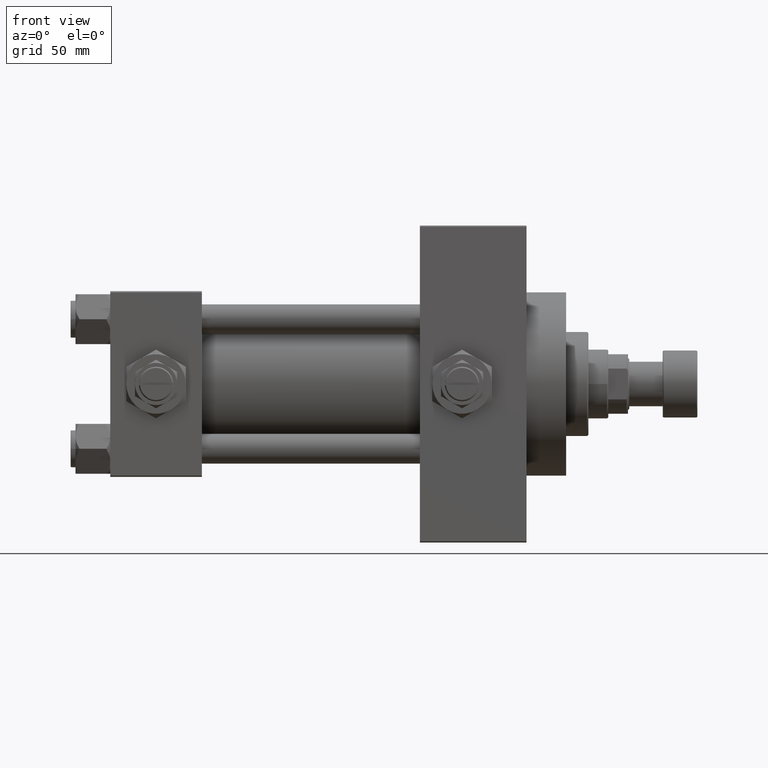
[diagram: clean part render]
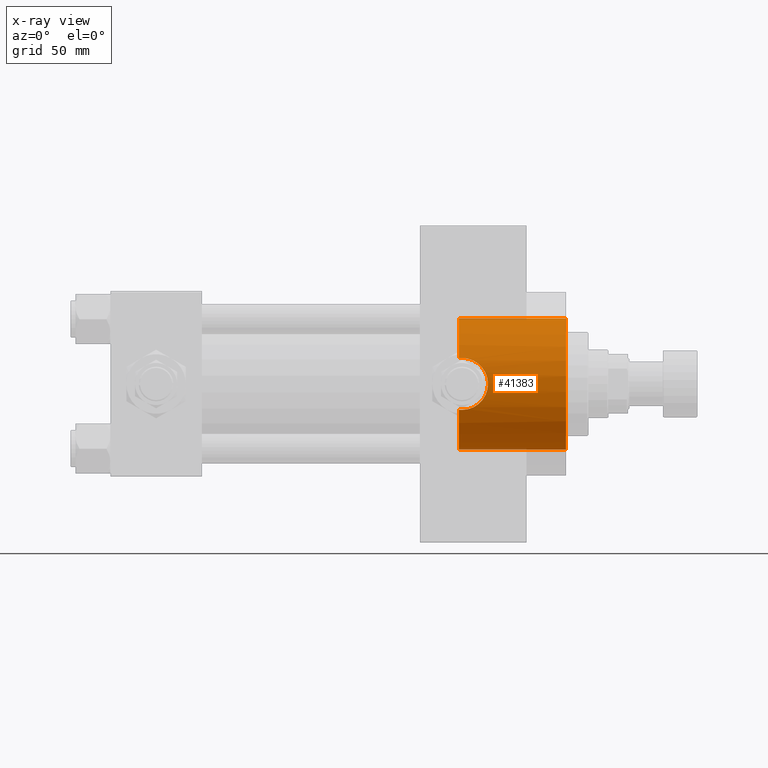
[diagram: x-ray — body ghosted, one internal face saturated and labeled with its STEP entity id]
A machine part, front view, then the same camera in x-ray: the body is ghosted and one INTERNAL B-rep face — a face not visible from any outside direction — is saturated and labeled: STEP entity #41383.
In plain terms, the highlighted cylindrical surface (partial cylindrical patch) has radius 26.5 mm, axis along (1, 0, 0).
Its self-contained STEP definition (entity closure, byte-faithful):
#91 = DIRECTION ( 'NONE',  ( 1.000000000000000000, -0.000000000000000000, -0.000000000000000000 ) ) ;
#261 = EDGE_CURVE ( 'NONE', #30128, #46698, #22374, .T. ) ;
#367 = CARTESIAN_POINT ( 'NONE',  ( 140.7400000000000091, 0.000000000000000000, 0.000000000000000000 ) ) ;
#427 = DIRECTION ( 'NONE',  ( 1.000000000000000000, -0.000000000000000000, -0.000000000000000000 ) ) ;
#945 = CARTESIAN_POINT ( 'NONE',  ( 142.0000000000000284, -24.33967132070604933, -10.47999999999998444 ) ) ;
#1457 = AXIS2_PLACEMENT_3D ( 'NONE', #367, #19733, #30328 ) ;
#1464 = CARTESIAN_POINT ( 'NONE',  ( 152.1391112229687792, -26.36675217432884466, -2.738755341944245636 ) ) ;
#1931 = B_SPLINE_CURVE_WITH_KNOTS ( 'NONE', 3,
 ( #21583, #24389, #39720, #28411, #25126, #17314, #17805, #36932, #21088, #2463, #36199, #5249, #20590, #35946, #39957, #9509, #24878, #13783, #1464, #32431, #16817, #9274, #20838, #17065, #47760, #44222, #36686, #13290, #2206, #36444, #32677, #1968, #47998, #13530, #17552, #32925, #44478, #22584, #37182, #44720, #48744, #6742, #41689, #25622, #10267, #41198, #45717, #26364 ),
 .UNSPECIFIED., .F., .F.,
 ( 4, 2, 2, 2, 2, 2, 2, 2, 2, 2, 2, 2, 2, 2, 2, 2, 2, 2, 2, 2, 2, 2, 2, 4 ),
 ( 0.001255586767787714641, 0.003325356817179755085, 0.005395126866571796180, 0.006430011891267852289, 0.007464896915963908398, 0.009534666965355952095, 0.01056955199005197438, 0.01160443701474799492, 0.01367420706413999265, 0.01574397711353198864, 0.01677886213822798664, 0.01781374716292398463, 0.01988351721231598410, 0.02091840223701198556, 0.02195328726170798356, 0.02298817228640397808, 0.02402305731109997608, 0.02609282736049197207, 0.02712771238518797007, 0.02816259740988396806, 0.03023236745927596406, 0.03126725248397199675, 0.03230213750866803291, 0.03437190755806009829 ),
 .UNSPECIFIED. ) ;
#1968 = CARTESIAN_POINT ( 'NONE',  ( 151.0679913760332624, -25.97354752128885025, 5.264851845784581208 ) ) ;
#2161 = ORIENTED_EDGE ( 'NONE', *, *, #22871, .F. ) ;
#2206 = CARTESIAN_POINT ( 'NONE',  ( 151.8022638174866472, -26.23907308479209988, 3.723318718764343949 ) ) ;
#2463 = CARTESIAN_POINT ( 'NONE',  ( 148.4049404352971067, -25.16229795609818609, -8.322848467437516717 ) ) ;
#3491 = CARTESIAN_POINT ( 'NONE',  ( 140.7400000000000091, 3.245314017740486554E-15, 26.50000000000000355 ) ) ;
#4416 = CARTESIAN_POINT ( 'NONE',  ( 141.5811236364006049, -24.33967132070604933, -10.47999999999998444 ) ) ;
#4624 = EDGE_CURVE ( 'NONE', #30128, #24466, #35387, .T. ) ;
#5249 = CARTESIAN_POINT ( 'NONE',  ( 149.6501220615577097, -25.51256335955728005, -7.170912732211439433 ) ) ;
#5583 = EDGE_LOOP ( 'NONE', ( #9340, #44511, #32502, #2161, #36908, #30941, #12246, #34115 ) ) ;
#6742 = CARTESIAN_POINT ( 'NONE',  ( 145.7173844672076655, -24.61993612039166024, 9.804529592362708712 ) ) ;
#7743 = CARTESIAN_POINT ( 'NONE',  ( 140.7400000000000091, -24.37226292324946186, 10.40398000767012654 ) ) ;
#8119 = FACE_OUTER_BOUND ( 'NONE', #5583, .T. ) ;
#8215 = LINE ( 'NONE', #38410, #35284 ) ;
#8375 = CYLINDRICAL_SURFACE ( 'NONE', #35711, 26.50000000000000355 ) ;
#9142 = EDGE_CURVE ( 'NONE', #24466, #34055, #1931, .T. ) ;
#9274 = CARTESIAN_POINT ( 'NONE',  ( 152.4626037639855838, -26.49310609510638770, -0.6963515910539429532 ) ) ;
#9340 = ORIENTED_EDGE ( 'NONE', *, *, #46375, .F. ) ;
#9509 = CARTESIAN_POINT ( 'NONE',  ( 151.0816778311289568, -25.97633853132261450, -5.273786452924785983 ) ) ;
#9654 = VERTEX_POINT ( 'NONE', #32505 ) ;
#10267 = CARTESIAN_POINT ( 'NONE',  ( 144.3947302122628287, -24.45488967133339386, 10.20851256290625741 ) ) ;
#11296 = LINE ( 'NONE', #3491, #24463 ) ;
#11530 = CARTESIAN_POINT ( 'NONE',  ( 141.5796744023297435, -24.33967132070604933, 10.47999999999998799 ) ) ;
#12246 = ORIENTED_EDGE ( 'NONE', *, *, #9142, .T. ) ;
#13176 = DIRECTION ( 'NONE',  ( 1.000000000000000000, 0.000000000000000000, 0.000000000000000000 ) ) ;
#13290 = CARTESIAN_POINT ( 'NONE',  ( 151.9191483855533988, -26.28308039691835774, 3.400110870430087306 ) ) ;
#13530 = CARTESIAN_POINT ( 'NONE',  ( 150.3165002292777501, -25.71874665637611912, 6.413821170274206729 ) ) ;
#13565 = VERTEX_POINT ( 'NONE', #16844 ) ;
#13783 = CARTESIAN_POINT ( 'NONE',  ( 151.9389570606565769, -26.28956209411558476, -3.395175965175881938 ) ) ;
#14942 = DIRECTION ( 'NONE',  ( 0.000000000000000000, 0.000000000000000000, -1.000000000000000000 ) ) ;
#15902 = CARTESIAN_POINT ( 'NONE',  ( 140.7400000000000091, 0.000000000000000000, -26.50000000000000355 ) ) ;
#15985 = CARTESIAN_POINT ( 'NONE',  ( 140.7400000000000091, -24.37226292324946542, -10.40398000767012299 ) ) ;
#16817 = CARTESIAN_POINT ( 'NONE',  ( 152.3935590552674171, -26.46591511510092332, -1.387412420731378715 ) ) ;
#16844 = CARTESIAN_POINT ( 'NONE',  ( 184.0000000000000000, 0.000000000000000000, -26.50000000000000355 ) ) ;
#17065 = CARTESIAN_POINT ( 'NONE',  ( 152.4798633477533940, -26.49994595790487750, 0.6963870350870441372 ) ) ;
#17314 = CARTESIAN_POINT ( 'NONE',  ( 146.3489237122697659, -24.72318467201153425, -9.541179571695405315 ) ) ;
#17552 = CARTESIAN_POINT ( 'NONE',  ( 149.8850942087586304, -25.58093385762821725, 6.936447548980003042 ) ) ;
#17805 = CARTESIAN_POINT ( 'NONE',  ( 146.6580558779860723, -24.77960996754317691, -9.394203453174519325 ) ) ;
#19432 = EDGE_CURVE ( 'NONE', #25444, #33069, #11296, .T. ) ;
#19733 = DIRECTION ( 'NONE',  ( 1.000000000000000000, 0.000000000000000000, 0.000000000000000000 ) ) ;
#20590 = CARTESIAN_POINT ( 'NONE',  ( 149.8811664359166400, -25.58300917221410486, -6.916171625962123315 ) ) ;
#20838 = CARTESIAN_POINT ( 'NONE',  ( 152.4800680225664280, -26.50002690099940494, -0.3451042088078350445 ) ) ;
#21088 = CARTESIAN_POINT ( 'NONE',  ( 147.5577538920436496, -24.96463143003449758, -8.891425016462831010 ) ) ;
#21583 = CARTESIAN_POINT ( 'NONE',  ( 142.0000000000000284, -24.33967132070604933, -10.47999999999998444 ) ) ;
#22374 = CIRCLE ( 'NONE', #1457, 26.50000000000000355 ) ;
#22584 = CARTESIAN_POINT ( 'NONE',  ( 148.3864792908362631, -25.16230905708523480, 8.316254619809530624 ) ) ;
#22871 = EDGE_CURVE ( 'NONE', #46698, #13565, #8215, .T. ) ;
#23109 = DIRECTION ( 'NONE',  ( 1.000000000000000000, -0.000000000000000000, -0.000000000000000000 ) ) ;
#23769 = CARTESIAN_POINT ( 'NONE',  ( 140.7400000000000091, 0.000000000000000000, 0.000000000000000000 ) ) ;
#24012 = DIRECTION ( 'NONE',  ( 0.000000000000000000, 0.000000000000000000, -1.000000000000000000 ) ) ;
#24363 = CARTESIAN_POINT ( 'NONE',  ( 140.7400000000000091, 3.245314017740486554E-15, 26.50000000000000355 ) ) ;
#24389 = CARTESIAN_POINT ( 'NONE',  ( 142.6904960883778131, -24.33967132070604578, -10.47999999999998622 ) ) ;
#24463 = VECTOR ( 'NONE', #23109, 1000.000000000000000 ) ;
#24466 = VERTEX_POINT ( 'NONE', #945 ) ;
#24878 = CARTESIAN_POINT ( 'NONE',  ( 151.4057128516256228, -26.09263577897064224, -4.673612418766440513 ) ) ;
#25126 = CARTESIAN_POINT ( 'NONE',  ( 145.4024368383432204, -24.56844862672226881, -9.935854460437951730 ) ) ;
#25444 = VERTEX_POINT ( 'NONE', #24363 ) ;
#25545 = CARTESIAN_POINT ( 'NONE',  ( 142.0000000000000284, -24.33967132070604933, 10.47999999999998799 ) ) ;
#25622 = CARTESIAN_POINT ( 'NONE',  ( 144.7286532048194374, -24.48994387988090438, 10.12445329003760008 ) ) ;
#26202 = CIRCLE ( 'NONE', #39037, 26.50000000000000355 ) ;
#26364 = CARTESIAN_POINT ( 'NONE',  ( 142.0000000000000284, -24.33967132070604933, 10.47999999999998799 ) ) ;
#26885 = CARTESIAN_POINT ( 'NONE',  ( 141.1580741051582493, -24.35064928096444703, 10.45461191700780645 ) ) ;
#28071 = CARTESIAN_POINT ( 'NONE',  ( 142.0000000000000284, -24.33967132070604933, -10.47999999999998444 ) ) ;
#28411 = CARTESIAN_POINT ( 'NONE',  ( 144.7461877943154036, -24.48462605612511567, -10.13781324604277145 ) ) ;
#30128 = VERTEX_POINT ( 'NONE', #31934 ) ;
#30328 = DIRECTION ( 'NONE',  ( 0.000000000000000000, 0.000000000000000000, -1.000000000000000000 ) ) ;
#30941 = ORIENTED_EDGE ( 'NONE', *, *, #4624, .T. ) ;
#31140 = CARTESIAN_POINT ( 'NONE',  ( 184.0000000000000000, 0.000000000000000000, 0.000000000000000000 ) ) ;
#31934 = CARTESIAN_POINT ( 'NONE',  ( 140.7400000000000091, -24.37226292324946542, -10.40398000767012299 ) ) ;
#32274 = EDGE_CURVE ( 'NONE', #33069, #13565, #49132, .T. ) ;
#32431 = CARTESIAN_POINT ( 'NONE',  ( 152.3421836049516855, -26.44572692659851754, -1.728475508984261610 ) ) ;
#32502 = ORIENTED_EDGE ( 'NONE', *, *, #32274, .T. ) ;
#32505 = CARTESIAN_POINT ( 'NONE',  ( 140.7400000000000091, -24.37226292324946186, 10.40398000767012654 ) ) ;
#32677 = CARTESIAN_POINT ( 'NONE',  ( 151.3916535229813576, -26.08830885934474253, 4.663043711798783519 ) ) ;
#32772 = B_SPLINE_CURVE_WITH_KNOTS ( 'NONE', 3,
 ( #45988, #11530, #26885, #7743 ),
 .UNSPECIFIED., .F., .F.,
 ( 4, 4 ),
 ( 0.03437190755806009829, 0.03561776921873222035 ),
 .UNSPECIFIED. ) ;
#32925 = CARTESIAN_POINT ( 'NONE',  ( 149.1663633815065850, -25.37171319999175623, 7.654298772871978684 ) ) ;
#33069 = VERTEX_POINT ( 'NONE', #40420 ) ;
#34055 = VERTEX_POINT ( 'NONE', #25545 ) ;
#34115 = ORIENTED_EDGE ( 'NONE', *, *, #48333, .T. ) ;
#35284 = VECTOR ( 'NONE', #427, 1000.000000000000000 ) ;
#35296 = CARTESIAN_POINT ( 'NONE',  ( 140.7400000000000091, 0.000000000000000000, 0.000000000000000000 ) ) ;
#35387 = B_SPLINE_CURVE_WITH_KNOTS ( 'NONE', 3,
 ( #15985, #47174, #4416, #28071 ),
 .UNSPECIFIED., .F., .F.,
 ( 4, 4 ),
 ( 0.000000000000000000, 0.001255586767787714641 ),
 .UNSPECIFIED. ) ;
#35413 = DIRECTION ( 'NONE',  ( 1.000000000000000000, 0.000000000000000000, 0.000000000000000000 ) ) ;
#35711 = AXIS2_PLACEMENT_3D ( 'NONE', #35296, #91, #14942 ) ;
#35946 = CARTESIAN_POINT ( 'NONE',  ( 150.3132647636414845, -25.71940794313461254, -6.390292897823897533 ) ) ;
#36199 = CARTESIAN_POINT ( 'NONE',  ( 148.9276451403627561, -25.30216499957183984, -7.893159106980509598 ) ) ;
#36444 = CARTESIAN_POINT ( 'NONE',  ( 151.5385175848663266, -26.14168889184969657, 4.354785931857517056 ) ) ;
#36686 = CARTESIAN_POINT ( 'NONE',  ( 152.1219222710722647, -26.36027543327035261, 2.738055544399092600 ) ) ;
#36908 = ORIENTED_EDGE ( 'NONE', *, *, #261, .F. ) ;
#36932 = CARTESIAN_POINT ( 'NONE',  ( 147.2635990777562256, -24.90054338428140568, -9.068796382691630242 ) ) ;
#37182 = CARTESIAN_POINT ( 'NONE',  ( 148.1110651716822701, -25.09360970262139645, 8.520611273842991551 ) ) ;
#38410 = CARTESIAN_POINT ( 'NONE',  ( 140.7400000000000091, 0.000000000000000000, -26.50000000000000355 ) ) ;
#39037 = AXIS2_PLACEMENT_3D ( 'NONE', #23769, #13176, #24012 ) ;
#39720 = CARTESIAN_POINT ( 'NONE',  ( 143.3786097457406470, -24.36915941385105100, -10.41231194222668321 ) ) ;
#39957 = CARTESIAN_POINT ( 'NONE',  ( 150.5155153844950178, -25.78569419426081311, -6.118106053452856408 ) ) ;
#40296 = AXIS2_PLACEMENT_3D ( 'NONE', #31140, #35413, #46975 ) ;
#40420 = CARTESIAN_POINT ( 'NONE',  ( 184.0000000000000000, 3.245314017740486554E-15, 26.50000000000000355 ) ) ;
#41198 = CARTESIAN_POINT ( 'NONE',  ( 143.3839948142214951, -24.36973996242157980, 10.41091756284551728 ) ) ;
#41383 = ADVANCED_FACE ( 'NONE', ( #8119 ), #8375, .F. ) ;
#41689 = CARTESIAN_POINT ( 'NONE',  ( 145.3904700717597223, -24.57248644795726022, 9.922439993611760656 ) ) ;
#44222 = CARTESIAN_POINT ( 'NONE',  ( 152.2075249541715039, -26.39335609204158573, 2.399236127628234794 ) ) ;
#44478 = CARTESIAN_POINT ( 'NONE',  ( 148.9147507852791819, -25.30155050139244111, 7.882476147205575323 ) ) ;
#44511 = ORIENTED_EDGE ( 'NONE', *, *, #19432, .T. ) ;
#44720 = CARTESIAN_POINT ( 'NONE',  ( 147.2636119660473923, -24.89625137302611080, 9.087734872939162045 ) ) ;
#45717 = CARTESIAN_POINT ( 'NONE',  ( 142.6982936874238703, -24.33967132070605288, 10.47999999999998799 ) ) ;
#45988 = CARTESIAN_POINT ( 'NONE',  ( 142.0000000000000284, -24.33967132070604933, 10.47999999999998799 ) ) ;
#46375 = EDGE_CURVE ( 'NONE', #25444, #9654, #26202, .T. ) ;
#46698 = VERTEX_POINT ( 'NONE', #15902 ) ;
#46975 = DIRECTION ( 'NONE',  ( 0.000000000000000000, 0.000000000000000000, -1.000000000000000000 ) ) ;
#47174 = CARTESIAN_POINT ( 'NONE',  ( 141.1611364518797984, -24.35049096341793273, -10.45498279016080012 ) ) ;
#47760 = CARTESIAN_POINT ( 'NONE',  ( 152.4114040688937735, -26.47265107862980926, 1.382412405478187001 ) ) ;
#47998 = CARTESIAN_POINT ( 'NONE',  ( 150.8904987776702171, -25.91192981801192730, 5.559420023815748735 ) ) ;
#48333 = EDGE_CURVE ( 'NONE', #34055, #9654, #32772, .T. ) ;
#48744 = CARTESIAN_POINT ( 'NONE',  ( 146.6659000583122463, -24.77500862834707362, 9.408993987884874954 ) ) ;
#49132 = CIRCLE ( 'NONE', #40296, 26.50000000000000355 ) ;